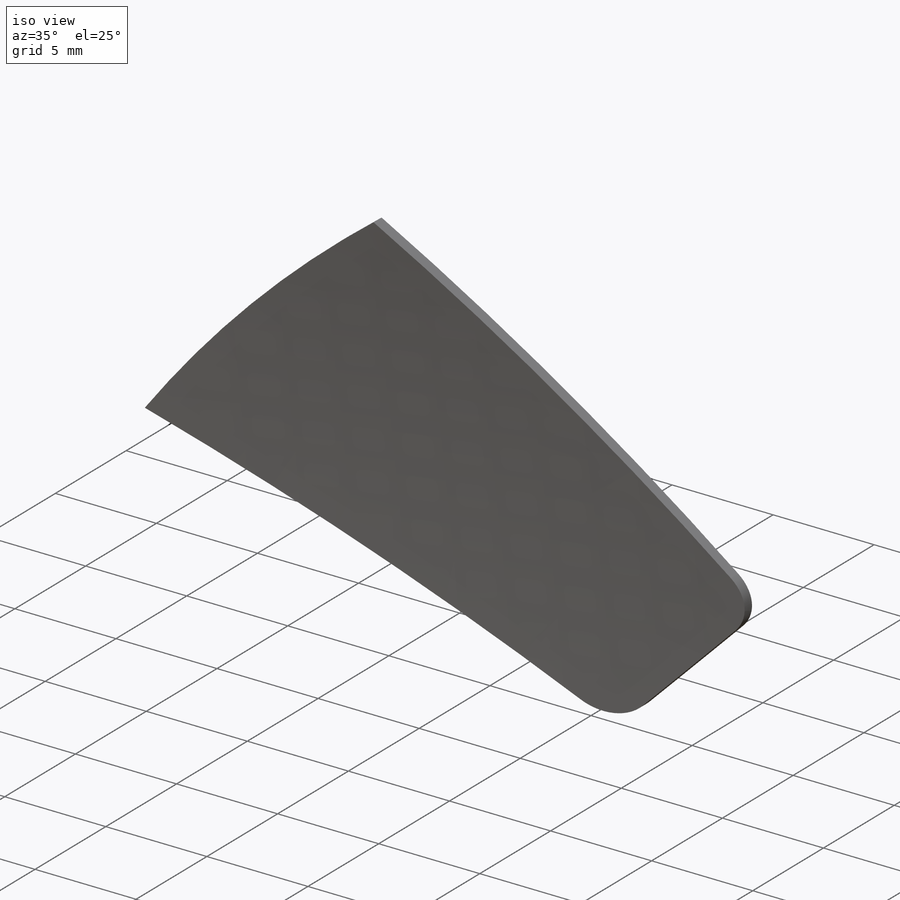
[diagram: iso view]
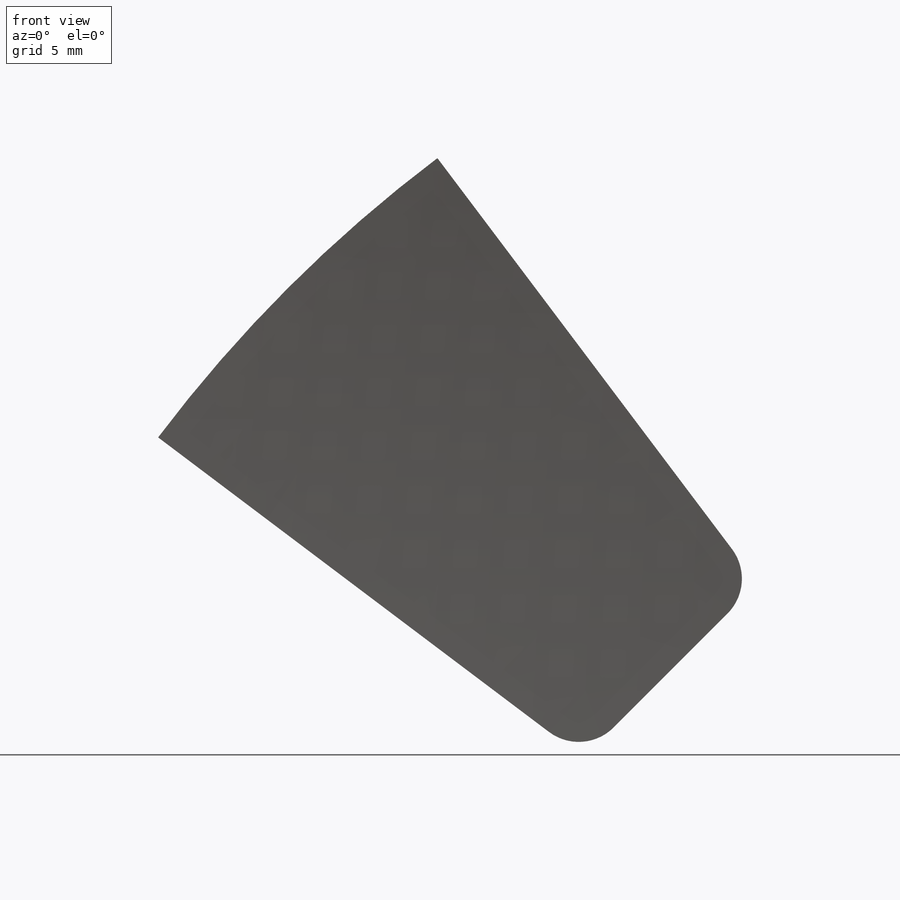
[diagram: front view]
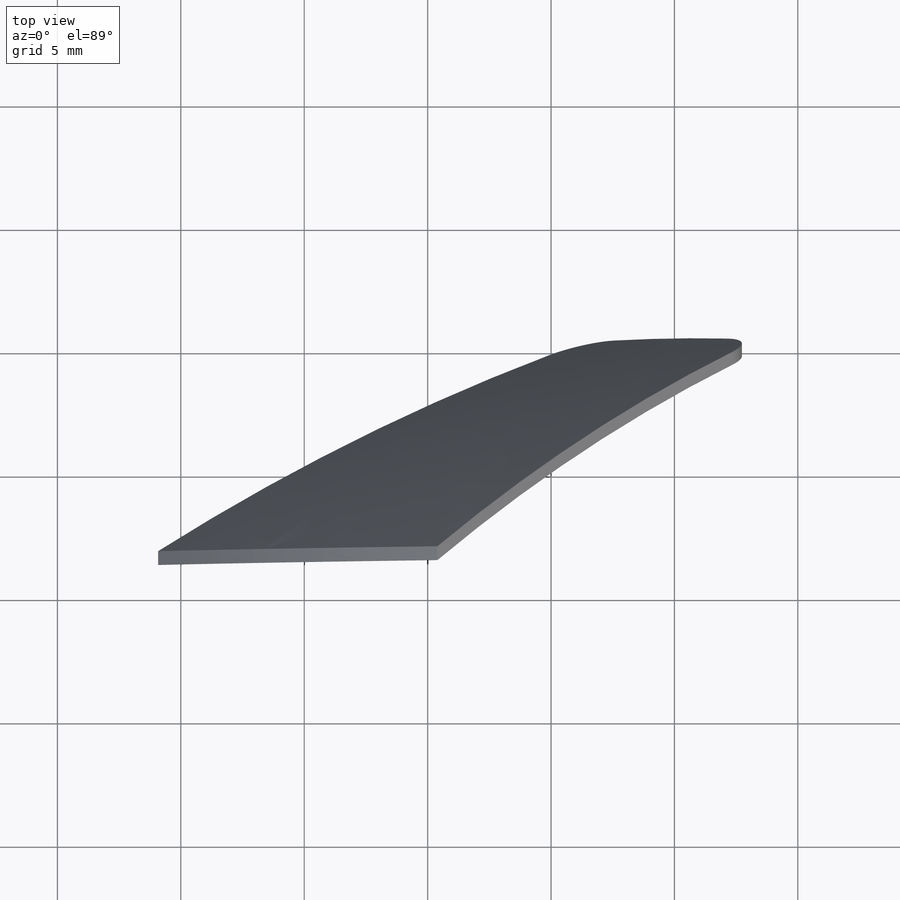
[diagram: top view]
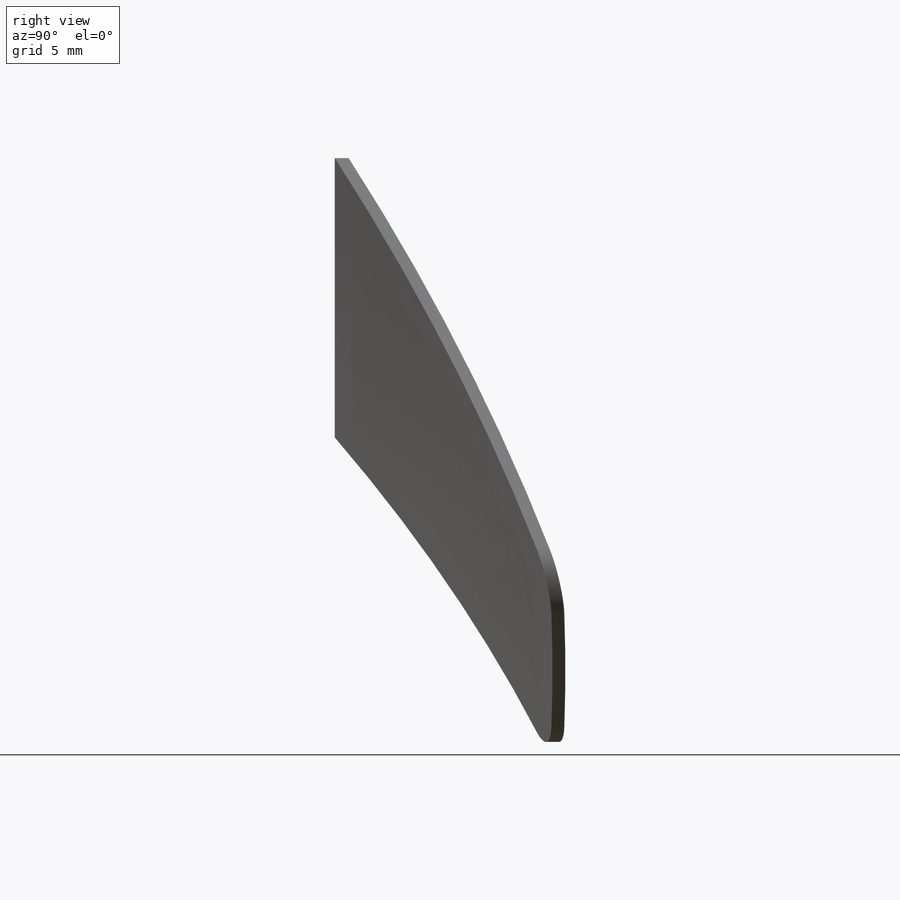
[diagram: right view]
SOLIDWORKS PART (.sldprt)
format: sldprt  version: not decoded by parser v0  size: 142,848 bytes
history: native  units: mm
features: plane x3, sketch x2, material x1, revolve x1, shell x1, cut_extrude x1, fillet x1 (+10 scaffold rows collapsed)
feature tree (20):
  scaffold x10  (default folders/planes/origin — collapsed)
  material  "材质 <未指定>"
  plane  "前视基准面"
  plane  "上视基准面"
  plane  "右视基准面"
  sketch  "草图1"  dims[c1.D2=115.0mm c1.D1=75.0mm c2.D1=45.0deg c2.D2=5.0mm c2.D3=~21.063949mm c3.D3=8.0deg]
  sketch  "草图2"  dims[D1=~318.489646mm]
  revolve  "旋转1"  Angle=180deg
  shell  "抽壳1"  Thickness=0.5mm
  cut_extrude  "切除-拉伸1"  Depth=323mm
  fillet  "圆角1"  Radius=2mm
decode coverage: 6 of 6 modeling features carry decoded parameters
note: ~ marks probable driven/reference dimensions
note: suppression state not decoded; provenance and decode notes live in map.json
